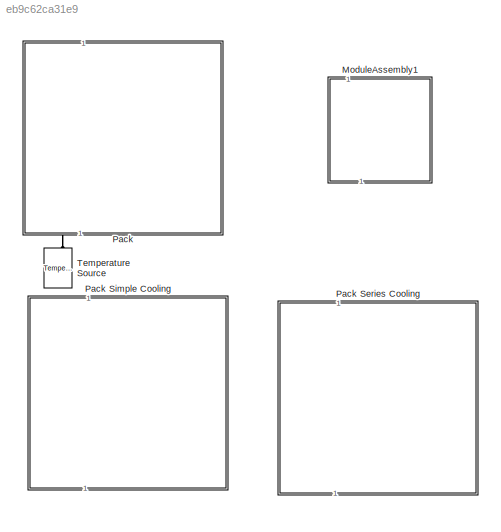
MODEL slx_eb9c62ca31e9
KIND library
CONFIG SolverName = VariableStepAuto
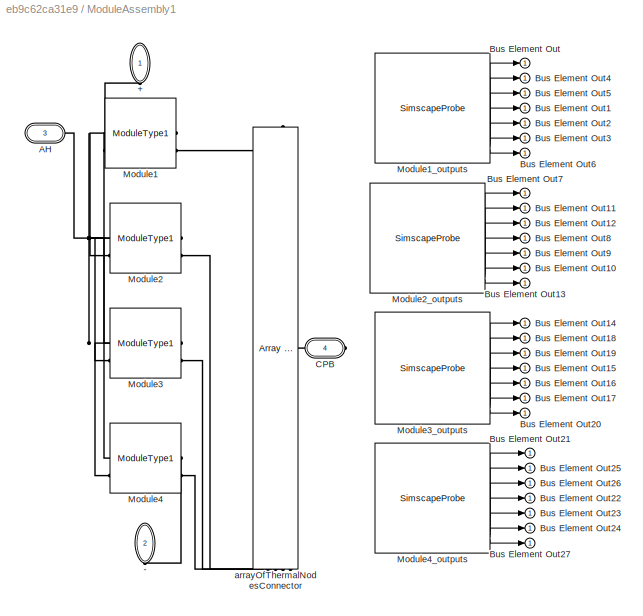
BLOCK [SubSystem] ModuleAssembly1
  LoadFcn = battery_builder_rtmsupport('loadfcn',gcbh);
  PortSchema = {"entries":[{"content":{"sides":[{"content":{"connectorIds":["LConn1","LConn2"]},"type":"ConnectorPlacement.EquallySpacedRectSide","uuid":"bc91a472-35c0-4041-89a6-b649b08794f0"},{"content":{"connectorIds":["RConn1","RConn2"],"side":"RIGHT"},"type":"ConnectorPlacement.EquallySpacedRectSide","uuid":"4a390b53-12a2-4d2f-9537-abc76db307f8"},{"content":{"connectorIds":[],"side":"TOP"},"type":"ConnectorP...<+413ch>
  PreCopyFcn = battery_builder_rtmsupport('precopyfcn',gcbh);
  PreDeleteFcn = battery_builder_rtmsupport('predeletefcn',gcbh);
BLOCK [PMIOPort] ModuleAssembly1/+
  NameLocation = left
  Side = Left
BLOCK [PMIOPort] ModuleAssembly1/-
  NameLocation = left
  Port = 2
  Side = Right
BLOCK [PMIOPort] ModuleAssembly1/AH
  Port = 3
  Side = Left
BLOCK [Outport] ModuleAssembly1/Bus Element Out
BLOCK [Outport] ModuleAssembly1/Bus Element Out1
BLOCK [Outport] ModuleAssembly1/Bus Element Out10
BLOCK [Outport] ModuleAssembly1/Bus Element Out11
BLOCK [Outport] ModuleAssembly1/Bus Element Out12
BLOCK [Outport] ModuleAssembly1/Bus Element Out13
BLOCK [Outport] ModuleAssembly1/Bus Element Out14
BLOCK [Outport] ModuleAssembly1/Bus Element Out15
BLOCK [Outport] ModuleAssembly1/Bus Element Out16
BLOCK [Outport] ModuleAssembly1/Bus Element Out17
BLOCK [Outport] ModuleAssembly1/Bus Element Out18
BLOCK [Outport] ModuleAssembly1/Bus Element Out19
BLOCK [Outport] ModuleAssembly1/Bus Element Out2
BLOCK [Outport] ModuleAssembly1/Bus Element Out20
BLOCK [Outport] ModuleAssembly1/Bus Element Out21
BLOCK [Outport] ModuleAssembly1/Bus Element Out22
BLOCK [Outport] ModuleAssembly1/Bus Element Out23
BLOCK [Outport] ModuleAssembly1/Bus Element Out24
BLOCK [Outport] ModuleAssembly1/Bus Element Out25
BLOCK [Outport] ModuleAssembly1/Bus Element Out26
BLOCK [Outport] ModuleAssembly1/Bus Element Out27
BLOCK [Outport] ModuleAssembly1/Bus Element Out3
BLOCK [Outport] ModuleAssembly1/Bus Element Out4
BLOCK [Outport] ModuleAssembly1/Bus Element Out5
BLOCK [Outport] ModuleAssembly1/Bus Element Out6
BLOCK [Outport] ModuleAssembly1/Bus Element Out7
BLOCK [Outport] ModuleAssembly1/Bus Element Out8
BLOCK [Outport] ModuleAssembly1/Bus Element Out9
BLOCK [PMIOPort] ModuleAssembly1/CPB
  Port = 4
  Side = Right
BLOCK [Reference] ModuleAssembly1/Module1  REF=pack_5p48s8p_4g4g4_Thr_lib/Modules/ModuleType1
  NameLocation = right
  SourceBlock = pack_5p48s8p_4g4g4_Thr_lib/Modules/ModuleType1
  SourceType = ModuleType1
BLOCK [SimscapeProbe] ModuleAssembly1/Module1_outputs
  BoundBlock = 1177
  Variables = {"batteryCurrent":{"Probing":"ON"},"batteryTemperature":{"Probing":"ON"},"batteryVoltage":{"Probing":"ON"},"iCell":{"Probing":"OFF"},"numCycles":{"Probing":"ON"},"numCyclesCell":{"Probing":"OFF"},"socCell":{"Probing":"ON"},"socParallelAssembly":{"Probing":"ON"},"temperatureCell":{"Probing":"OFF"},"vCell":{"Probing":"OFF"},"vParallelAssembly":{"Probing":"ON"}}  <repeated x4 — deduplicated; at blocks: Module1_outputs, Module2_outputs, Module3_outputs, Module4_outputs>
BLOCK [Reference] ModuleAssembly1/Module2  REF=pack_5p48s8p_4g4g4_Thr_lib/Modules/ModuleType1
  NameLocation = right
  SourceBlock = pack_5p48s8p_4g4g4_Thr_lib/Modules/ModuleType1
  SourceType = ModuleType1
BLOCK [SimscapeProbe] ModuleAssembly1/Module2_outputs
  BoundBlock = 1178
BLOCK [Reference] ModuleAssembly1/Module3  REF=pack_5p48s8p_4g4g4_Thr_lib/Modules/ModuleType1
  NameLocation = right
  SourceBlock = pack_5p48s8p_4g4g4_Thr_lib/Modules/ModuleType1
  SourceType = ModuleType1
BLOCK [SimscapeProbe] ModuleAssembly1/Module3_outputs
  BoundBlock = 1179
BLOCK [Reference] ModuleAssembly1/Module4  REF=pack_5p48s8p_4g4g4_Thr_lib/Modules/ModuleType1
  NameLocation = right
  SourceBlock = pack_5p48s8p_4g4g4_Thr_lib/Modules/ModuleType1
  SourceType = ModuleType1
BLOCK [SimscapeProbe] ModuleAssembly1/Module4_outputs
  BoundBlock = 1180
BLOCK [Reference] ModuleAssembly1/arrayOfThermalNodesConnector  REF=batt_lib/Thermal/Array of Thermal
Nodes Connector
  SourceBlock = batt_lib/Thermal/Array of Thermal\nNodes Connector
  SourceType = Array of Thermal\nNodes Connector
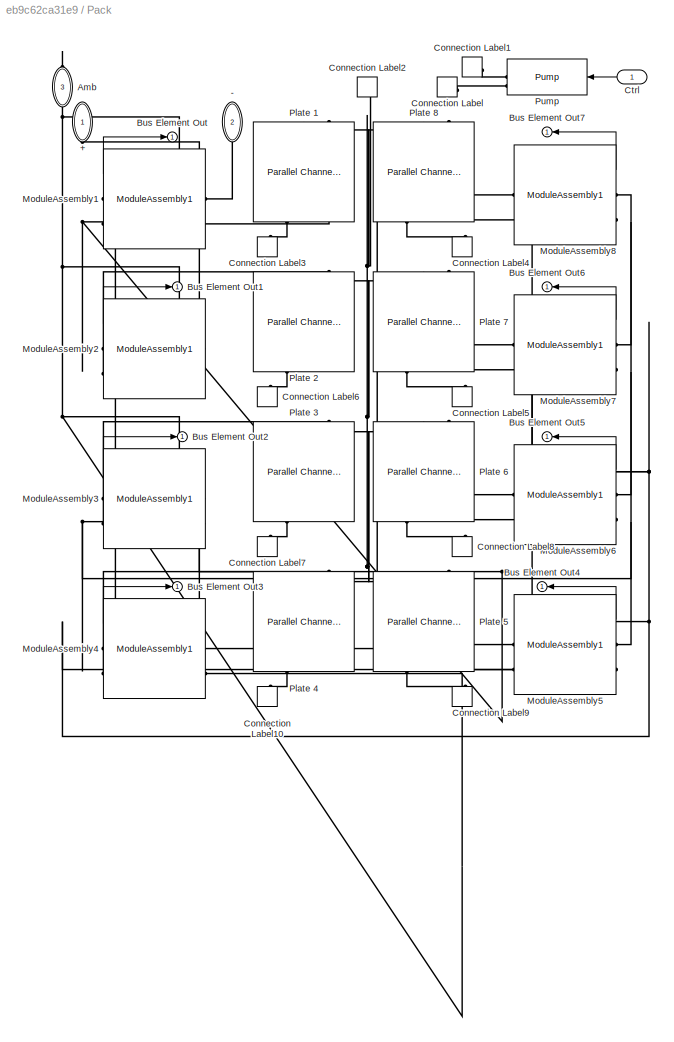
BLOCK [SubSystem] Pack
  LoadFcn = battery_builder_rtmsupport('loadfcn',gcbh);
  NameLocation = right
  PreCopyFcn = battery_builder_rtmsupport('precopyfcn',gcbh);
  PreDeleteFcn = battery_builder_rtmsupport('predeletefcn',gcbh);
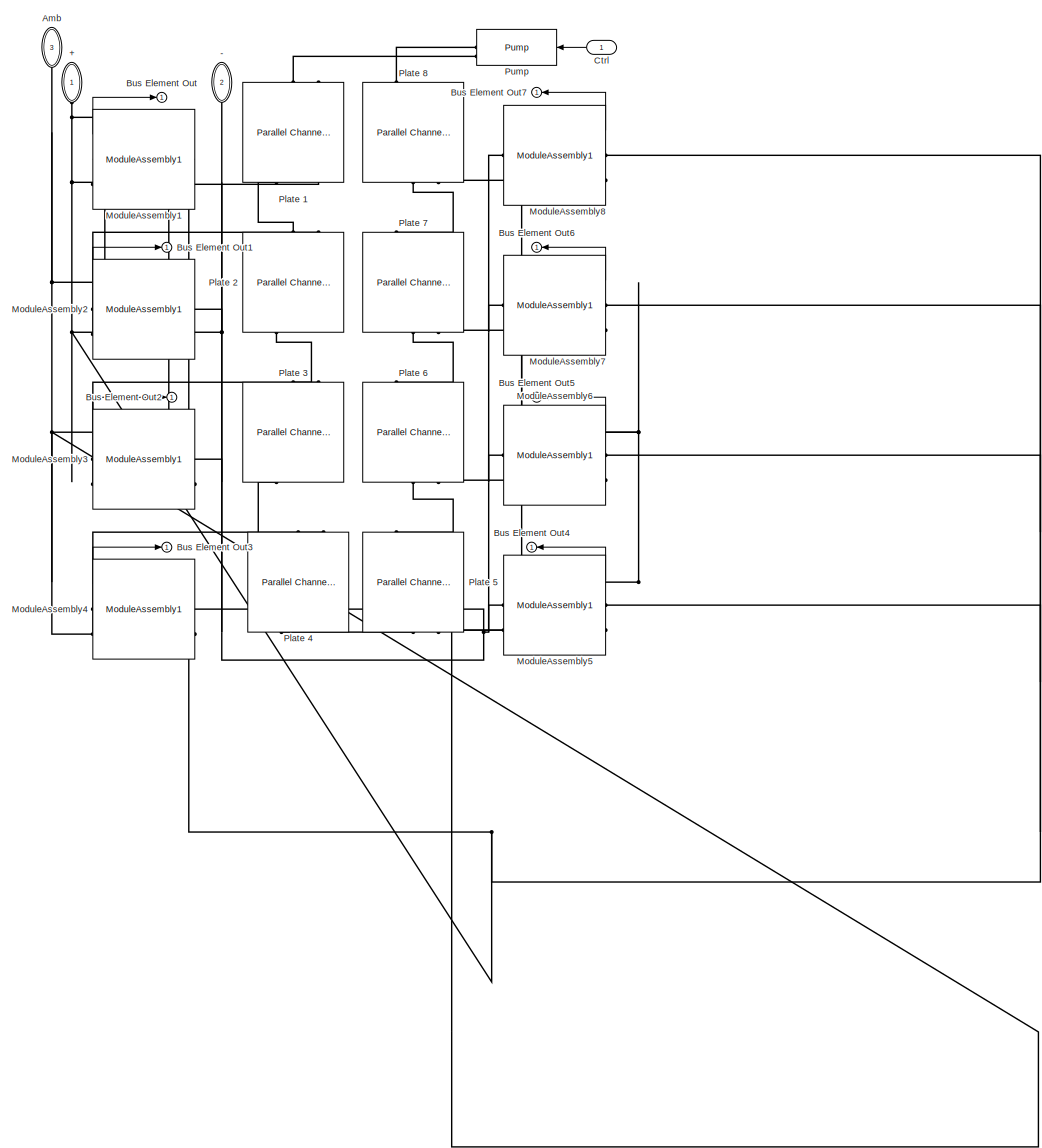
[diagram: Pack Series Cooling - part 1/1, most of the canvas]
BLOCK [SubSystem] Pack Series Cooling
  LoadFcn = battery_builder_rtmsupport('loadfcn',gcbh);
  NameLocation = right
  PreCopyFcn = battery_builder_rtmsupport('precopyfcn',gcbh);
  PreDeleteFcn = battery_builder_rtmsupport('predeletefcn',gcbh);
BLOCK [PMIOPort] Pack Series Cooling/+
  NameLocation = right
  Side = Left
BLOCK [PMIOPort] Pack Series Cooling/-
  NameLocation = right
  Port = 2
  Side = Right
BLOCK [PMIOPort] Pack Series Cooling/Amb
  NameLocation = right
  Port = 3
  Side = Right
BLOCK [Outport] Pack Series Cooling/Bus Element Out
BLOCK [Outport] Pack Series Cooling/Bus Element Out1
BLOCK [Outport] Pack Series Cooling/Bus Element Out2
BLOCK [Outport] Pack Series Cooling/Bus Element Out3
  NameLocation = left
BLOCK [Outport] Pack Series Cooling/Bus Element Out4
BLOCK [Outport] Pack Series Cooling/Bus Element Out5
BLOCK [Outport] Pack Series Cooling/Bus Element Out6
BLOCK [Outport] Pack Series Cooling/Bus Element Out7
BLOCK [Inport] Pack Series Cooling/Ctrl
BLOCK [Reference] Pack Series Cooling/ModuleAssembly1  REF=$bdroot/ModuleAssembly1
  SourceBlock = $bdroot/ModuleAssembly1
BLOCK [Reference] Pack Series Cooling/ModuleAssembly2  REF=$bdroot/ModuleAssembly1
  SourceBlock = $bdroot/ModuleAssembly1
BLOCK [Reference] Pack Series Cooling/ModuleAssembly3  REF=$bdroot/ModuleAssembly1
  SourceBlock = $bdroot/ModuleAssembly1
BLOCK [Reference] Pack Series Cooling/ModuleAssembly4  REF=$bdroot/ModuleAssembly1
  SourceBlock = $bdroot/ModuleAssembly1
BLOCK [Reference] Pack Series Cooling/ModuleAssembly5  REF=$bdroot/ModuleAssembly1
  SourceBlock = $bdroot/ModuleAssembly1
BLOCK [Reference] Pack Series Cooling/ModuleAssembly6  REF=$bdroot/ModuleAssembly1
  SourceBlock = $bdroot/ModuleAssembly1
BLOCK [Reference] Pack Series Cooling/ModuleAssembly7  REF=$bdroot/ModuleAssembly1
  SourceBlock = $bdroot/ModuleAssembly1
BLOCK [Reference] Pack Series Cooling/ModuleAssembly8  REF=$bdroot/ModuleAssembly1
  SourceBlock = $bdroot/ModuleAssembly1
BLOCK [Reference] Pack Series Cooling/Plate 1  REF=batt_lib/Thermal/Parallel Channels
  SourceBlock = batt_lib/Thermal/Parallel Channels
  SourceType = Parallel Channels
BLOCK [Reference] Pack Series Cooling/Plate 2  REF=batt_lib/Thermal/Parallel Channels
  SourceBlock = batt_lib/Thermal/Parallel Channels
  SourceType = Parallel Channels
BLOCK [Reference] Pack Series Cooling/Plate 3  REF=batt_lib/Thermal/Parallel Channels
  SourceBlock = batt_lib/Thermal/Parallel Channels
  SourceType = Parallel Channels
BLOCK [Reference] Pack Series Cooling/Plate 4  REF=batt_lib/Thermal/Parallel Channels
  SourceBlock = batt_lib/Thermal/Parallel Channels
  SourceType = Parallel Channels
BLOCK [Reference] Pack Series Cooling/Plate 5  REF=batt_lib/Thermal/Parallel Channels
  SourceBlock = batt_lib/Thermal/Parallel Channels
  SourceType = Parallel Channels
BLOCK [Reference] Pack Series Cooling/Plate 6  REF=batt_lib/Thermal/Parallel Channels
  SourceBlock = batt_lib/Thermal/Parallel Channels
  SourceType = Parallel Channels
BLOCK [Reference] Pack Series Cooling/Plate 7  REF=batt_lib/Thermal/Parallel Channels
  SourceBlock = batt_lib/Thermal/Parallel Channels
  SourceType = Parallel Channels
BLOCK [Reference] Pack Series Cooling/Plate 8  REF=batt_lib/Thermal/Parallel Channels
  SourceBlock = batt_lib/Thermal/Parallel Channels
  SourceType = Parallel Channels
BLOCK [Reference] Pack Series Cooling/Pump  REF=cooling_system_components/Pump  (lib defined in slx_1e8e36c102dd)
  SourceBlock = cooling_system_components/Pump
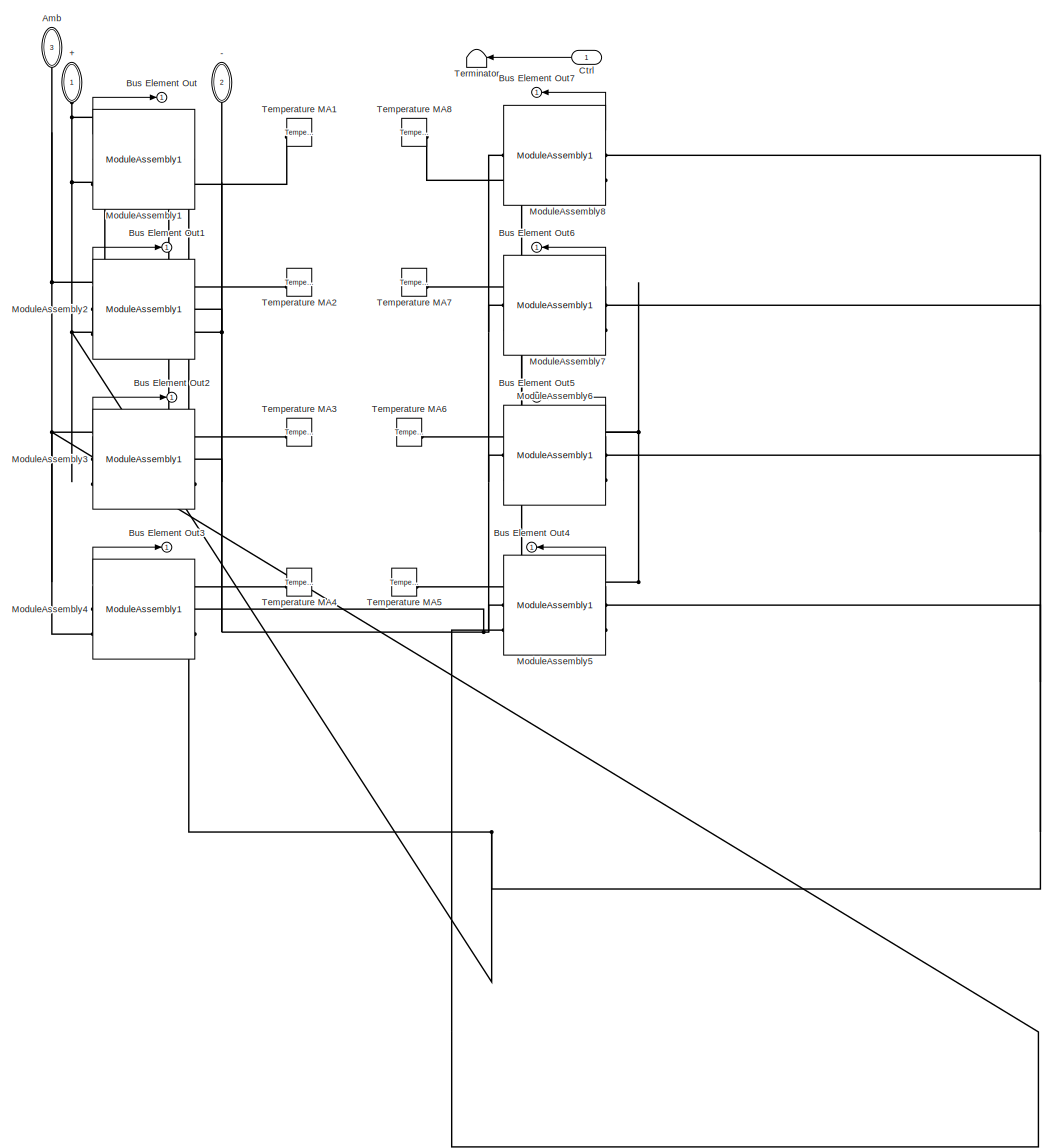
[diagram: Pack Simple Cooling - part 1/1, most of the canvas]
BLOCK [SubSystem] Pack Simple Cooling
  LoadFcn = battery_builder_rtmsupport('loadfcn',gcbh);
  NameLocation = right
  PreCopyFcn = battery_builder_rtmsupport('precopyfcn',gcbh);
  PreDeleteFcn = battery_builder_rtmsupport('predeletefcn',gcbh);
BLOCK [PMIOPort] Pack Simple Cooling/+
  NameLocation = right
  Side = Left
BLOCK [PMIOPort] Pack Simple Cooling/-
  NameLocation = right
  Port = 2
  Side = Right
BLOCK [PMIOPort] Pack Simple Cooling/Amb
  NameLocation = right
  Port = 3
  Side = Right
BLOCK [Outport] Pack Simple Cooling/Bus Element Out
BLOCK [Outport] Pack Simple Cooling/Bus Element Out1
BLOCK [Outport] Pack Simple Cooling/Bus Element Out2
BLOCK [Outport] Pack Simple Cooling/Bus Element Out3
  NameLocation = left
BLOCK [Outport] Pack Simple Cooling/Bus Element Out4
BLOCK [Outport] Pack Simple Cooling/Bus Element Out5
BLOCK [Outport] Pack Simple Cooling/Bus Element Out6
BLOCK [Outport] Pack Simple Cooling/Bus Element Out7
BLOCK [Inport] Pack Simple Cooling/Ctrl
  NameLocation = top
BLOCK [Reference] Pack Simple Cooling/ModuleAssembly1  REF=$bdroot/ModuleAssembly1
  SourceBlock = $bdroot/ModuleAssembly1
BLOCK [Reference] Pack Simple Cooling/ModuleAssembly2  REF=$bdroot/ModuleAssembly1
  SourceBlock = $bdroot/ModuleAssembly1
BLOCK [Reference] Pack Simple Cooling/ModuleAssembly3  REF=$bdroot/ModuleAssembly1
  SourceBlock = $bdroot/ModuleAssembly1
BLOCK [Reference] Pack Simple Cooling/ModuleAssembly4  REF=$bdroot/ModuleAssembly1
  SourceBlock = $bdroot/ModuleAssembly1
BLOCK [Reference] Pack Simple Cooling/ModuleAssembly5  REF=$bdroot/ModuleAssembly1
  SourceBlock = $bdroot/ModuleAssembly1
BLOCK [Reference] Pack Simple Cooling/ModuleAssembly6  REF=$bdroot/ModuleAssembly1
  SourceBlock = $bdroot/ModuleAssembly1
BLOCK [Reference] Pack Simple Cooling/ModuleAssembly7  REF=$bdroot/ModuleAssembly1
  SourceBlock = $bdroot/ModuleAssembly1
BLOCK [Reference] Pack Simple Cooling/ModuleAssembly8  REF=$bdroot/ModuleAssembly1
  SourceBlock = $bdroot/ModuleAssembly1
BLOCK [Reference] Pack Simple Cooling/Temperature MA1  REF=cooling_system_components/Temperature Array4  (lib defined in slx_1e8e36c102dd)
Single Module
  SourceBlock = cooling_system_components/Temperature Array4\nSingle Module
BLOCK [Reference] Pack Simple Cooling/Temperature MA2  REF=cooling_system_components/Temperature Array4  (lib defined in slx_1e8e36c102dd)
Single Module
  SourceBlock = cooling_system_components/Temperature Array4\nSingle Module
BLOCK [Reference] Pack Simple Cooling/Temperature MA3  REF=cooling_system_components/Temperature Array4  (lib defined in slx_1e8e36c102dd)
Single Module
  SourceBlock = cooling_system_components/Temperature Array4\nSingle Module
BLOCK [Reference] Pack Simple Cooling/Temperature MA4  REF=cooling_system_components/Temperature Array4  (lib defined in slx_1e8e36c102dd)
Single Module
  SourceBlock = cooling_system_components/Temperature Array4\nSingle Module
BLOCK [Reference] Pack Simple Cooling/Temperature MA5  REF=cooling_system_components/Temperature Array4  (lib defined in slx_1e8e36c102dd)
Single Module
  SourceBlock = cooling_system_components/Temperature Array4\nSingle Module
BLOCK [Reference] Pack Simple Cooling/Temperature MA6  REF=cooling_system_components/Temperature Array4  (lib defined in slx_1e8e36c102dd)
Single Module
  SourceBlock = cooling_system_components/Temperature Array4\nSingle Module
BLOCK [Reference] Pack Simple Cooling/Temperature MA7  REF=cooling_system_components/Temperature Array4  (lib defined in slx_1e8e36c102dd)
Single Module
  SourceBlock = cooling_system_components/Temperature Array4\nSingle Module
BLOCK [Reference] Pack Simple Cooling/Temperature MA8  REF=cooling_system_components/Temperature Array4  (lib defined in slx_1e8e36c102dd)
Single Module
  SourceBlock = cooling_system_components/Temperature Array4\nSingle Module
BLOCK [Terminator] Pack Simple Cooling/Terminator
  NameLocation = top
BLOCK [PMIOPort] Pack/+
  NameLocation = right
  Side = Left
BLOCK [PMIOPort] Pack/-
  NameLocation = right
  Port = 2
  Side = Right
BLOCK [PMIOPort] Pack/Amb
  NameLocation = right
  Port = 3
  Side = Right
BLOCK [Outport] Pack/Bus Element Out
BLOCK [Outport] Pack/Bus Element Out1
BLOCK [Outport] Pack/Bus Element Out2
BLOCK [Outport] Pack/Bus Element Out3
  NameLocation = left
BLOCK [Outport] Pack/Bus Element Out4
BLOCK [Outport] Pack/Bus Element Out5
BLOCK [Outport] Pack/Bus Element Out6
BLOCK [Outport] Pack/Bus Element Out7
BLOCK [ConnectionLabel] Pack/Connection Label
  Label = Plate
  NameLocation = right
BLOCK [ConnectionLabel] Pack/Connection Label1
  Label = Return
  NameLocation = right
BLOCK [ConnectionLabel] Pack/Connection Label10
  Label = Return
  NameLocation = right
BLOCK [ConnectionLabel] Pack/Connection Label2
  Label = Plate
  NameLocation = right
BLOCK [ConnectionLabel] Pack/Connection Label3
  Label = Return
  NameLocation = right
BLOCK [ConnectionLabel] Pack/Connection Label4
  Label = Return
  NameLocation = right
BLOCK [ConnectionLabel] Pack/Connection Label5
  Label = Return
  NameLocation = right
BLOCK [ConnectionLabel] Pack/Connection Label6
  Label = Return
  NameLocation = right
BLOCK [ConnectionLabel] Pack/Connection Label7
  Label = Return
  NameLocation = right
BLOCK [ConnectionLabel] Pack/Connection Label8
  Label = Return
  NameLocation = right
BLOCK [ConnectionLabel] Pack/Connection Label9
  Label = Return
  NameLocation = right
BLOCK [Inport] Pack/Ctrl
BLOCK [Reference] Pack/ModuleAssembly1  REF=$bdroot/ModuleAssembly1
  SourceBlock = $bdroot/ModuleAssembly1
BLOCK [Reference] Pack/ModuleAssembly2  REF=$bdroot/ModuleAssembly1
  SourceBlock = $bdroot/ModuleAssembly1
BLOCK [Reference] Pack/ModuleAssembly3  REF=$bdroot/ModuleAssembly1
  SourceBlock = $bdroot/ModuleAssembly1
BLOCK [Reference] Pack/ModuleAssembly4  REF=$bdroot/ModuleAssembly1
  SourceBlock = $bdroot/ModuleAssembly1
BLOCK [Reference] Pack/ModuleAssembly5  REF=$bdroot/ModuleAssembly1
  SourceBlock = $bdroot/ModuleAssembly1
BLOCK [Reference] Pack/ModuleAssembly6  REF=$bdroot/ModuleAssembly1
  SourceBlock = $bdroot/ModuleAssembly1
BLOCK [Reference] Pack/ModuleAssembly7  REF=$bdroot/ModuleAssembly1
  SourceBlock = $bdroot/ModuleAssembly1
BLOCK [Reference] Pack/ModuleAssembly8  REF=$bdroot/ModuleAssembly1
  SourceBlock = $bdroot/ModuleAssembly1
BLOCK [Reference] Pack/Plate 1  REF=batt_lib/Thermal/Parallel Channels
  SourceBlock = batt_lib/Thermal/Parallel Channels
  SourceType = Parallel Channels
BLOCK [Reference] Pack/Plate 2  REF=batt_lib/Thermal/Parallel Channels
  SourceBlock = batt_lib/Thermal/Parallel Channels
  SourceType = Parallel Channels
BLOCK [Reference] Pack/Plate 3  REF=batt_lib/Thermal/Parallel Channels
  SourceBlock = batt_lib/Thermal/Parallel Channels
  SourceType = Parallel Channels
BLOCK [Reference] Pack/Plate 4  REF=batt_lib/Thermal/Parallel Channels
  SourceBlock = batt_lib/Thermal/Parallel Channels
  SourceType = Parallel Channels
BLOCK [Reference] Pack/Plate 5  REF=batt_lib/Thermal/Parallel Channels
  SourceBlock = batt_lib/Thermal/Parallel Channels
  SourceType = Parallel Channels
BLOCK [Reference] Pack/Plate 6  REF=batt_lib/Thermal/Parallel Channels
  SourceBlock = batt_lib/Thermal/Parallel Channels
  SourceType = Parallel Channels
BLOCK [Reference] Pack/Plate 7  REF=batt_lib/Thermal/Parallel Channels
  SourceBlock = batt_lib/Thermal/Parallel Channels
  SourceType = Parallel Channels
BLOCK [Reference] Pack/Plate 8  REF=batt_lib/Thermal/Parallel Channels
  SourceBlock = batt_lib/Thermal/Parallel Channels
  SourceType = Parallel Channels
BLOCK [Reference] Pack/Pump  REF=cooling_system_components/Pump  (lib defined in slx_1e8e36c102dd)
  SourceBlock = cooling_system_components/Pump
BLOCK [Reference] Temperature Source  REF=fl_lib/Thermal/Thermal Sources/Temperature Source
  NameLocation = right
  SourceBlock = fl_lib/Thermal/Thermal Sources/Temperature Source
  SourceType = Temperature Source
LINE ModuleAssembly1/Module1_outputs:1 -> ModuleAssembly1/Bus Element Out:1
LINE ModuleAssembly1/Module1_outputs:2 -> ModuleAssembly1/Bus Element Out4:1
LINE ModuleAssembly1/Module1_outputs:3 -> ModuleAssembly1/Bus Element Out5:1
LINE ModuleAssembly1/Module1_outputs:4 -> ModuleAssembly1/Bus Element Out1:1
LINE ModuleAssembly1/Module1_outputs:5 -> ModuleAssembly1/Bus Element Out2:1
LINE ModuleAssembly1/Module1_outputs:6 -> ModuleAssembly1/Bus Element Out3:1
LINE ModuleAssembly1/Module1_outputs:7 -> ModuleAssembly1/Bus Element Out6:1
LINE ModuleAssembly1/Module2_outputs:1 -> ModuleAssembly1/Bus Element Out7:1
LINE ModuleAssembly1/Module2_outputs:2 -> ModuleAssembly1/Bus Element Out11:1
LINE ModuleAssembly1/Module2_outputs:3 -> ModuleAssembly1/Bus Element Out12:1
LINE ModuleAssembly1/Module2_outputs:4 -> ModuleAssembly1/Bus Element Out8:1
LINE ModuleAssembly1/Module2_outputs:5 -> ModuleAssembly1/Bus Element Out9:1
LINE ModuleAssembly1/Module2_outputs:6 -> ModuleAssembly1/Bus Element Out10:1
LINE ModuleAssembly1/Module2_outputs:7 -> ModuleAssembly1/Bus Element Out13:1
LINE ModuleAssembly1/Module3_outputs:1 -> ModuleAssembly1/Bus Element Out14:1
LINE ModuleAssembly1/Module3_outputs:2 -> ModuleAssembly1/Bus Element Out18:1
LINE ModuleAssembly1/Module3_outputs:3 -> ModuleAssembly1/Bus Element Out19:1
LINE ModuleAssembly1/Module3_outputs:4 -> ModuleAssembly1/Bus Element Out15:1
LINE ModuleAssembly1/Module3_outputs:5 -> ModuleAssembly1/Bus Element Out16:1
LINE ModuleAssembly1/Module3_outputs:6 -> ModuleAssembly1/Bus Element Out17:1
LINE ModuleAssembly1/Module3_outputs:7 -> ModuleAssembly1/Bus Element Out20:1
LINE ModuleAssembly1/Module4_outputs:1 -> ModuleAssembly1/Bus Element Out21:1
LINE ModuleAssembly1/Module4_outputs:2 -> ModuleAssembly1/Bus Element Out25:1
LINE ModuleAssembly1/Module4_outputs:3 -> ModuleAssembly1/Bus Element Out26:1
LINE ModuleAssembly1/Module4_outputs:4 -> ModuleAssembly1/Bus Element Out22:1
LINE ModuleAssembly1/Module4_outputs:5 -> ModuleAssembly1/Bus Element Out23:1
LINE ModuleAssembly1/Module4_outputs:6 -> ModuleAssembly1/Bus Element Out24:1
LINE ModuleAssembly1/Module4_outputs:7 -> ModuleAssembly1/Bus Element Out27:1
LINE Pack Series Cooling/Ctrl:1 -> Pack Series Cooling/Pump:1
LINE Pack Series Cooling/ModuleAssembly1:1 -> Pack Series Cooling/Bus Element Out:1
LINE Pack Series Cooling/ModuleAssembly2:1 -> Pack Series Cooling/Bus Element Out1:1
LINE Pack Series Cooling/ModuleAssembly3:1 -> Pack Series Cooling/Bus Element Out2:1
LINE Pack Series Cooling/ModuleAssembly4:1 -> Pack Series Cooling/Bus Element Out3:1
LINE Pack Series Cooling/ModuleAssembly5:1 -> Pack Series Cooling/Bus Element Out4:1
LINE Pack Series Cooling/ModuleAssembly6:1 -> Pack Series Cooling/Bus Element Out5:1
LINE Pack Series Cooling/ModuleAssembly7:1 -> Pack Series Cooling/Bus Element Out6:1
LINE Pack Series Cooling/ModuleAssembly8:1 -> Pack Series Cooling/Bus Element Out7:1
LINE Pack Simple Cooling/Ctrl:1 -> Pack Simple Cooling/Terminator:1
LINE Pack Simple Cooling/ModuleAssembly1:1 -> Pack Simple Cooling/Bus Element Out:1
LINE Pack Simple Cooling/ModuleAssembly2:1 -> Pack Simple Cooling/Bus Element Out1:1
LINE Pack Simple Cooling/ModuleAssembly3:1 -> Pack Simple Cooling/Bus Element Out2:1
LINE Pack Simple Cooling/ModuleAssembly4:1 -> Pack Simple Cooling/Bus Element Out3:1
LINE Pack Simple Cooling/ModuleAssembly5:1 -> Pack Simple Cooling/Bus Element Out4:1
LINE Pack Simple Cooling/ModuleAssembly6:1 -> Pack Simple Cooling/Bus Element Out5:1
LINE Pack Simple Cooling/ModuleAssembly7:1 -> Pack Simple Cooling/Bus Element Out6:1
LINE Pack Simple Cooling/ModuleAssembly8:1 -> Pack Simple Cooling/Bus Element Out7:1
LINE Pack/Ctrl:1 -> Pack/Pump:1
LINE Pack/ModuleAssembly1:1 -> Pack/Bus Element Out:1
LINE Pack/ModuleAssembly2:1 -> Pack/Bus Element Out1:1
LINE Pack/ModuleAssembly3:1 -> Pack/Bus Element Out2:1
LINE Pack/ModuleAssembly4:1 -> Pack/Bus Element Out3:1
LINE Pack/ModuleAssembly5:1 -> Pack/Bus Element Out4:1
LINE Pack/ModuleAssembly6:1 -> Pack/Bus Element Out5:1
LINE Pack/ModuleAssembly7:1 -> Pack/Bus Element Out6:1
LINE Pack/ModuleAssembly8:1 -> Pack/Bus Element Out7:1
PLINE ModuleAssembly1/+:RConn1 -- ModuleAssembly1/Module1:LConn2
PLINE ModuleAssembly1/-:RConn1 -- ModuleAssembly1/Module4:RConn1
PNET net1: ModuleAssembly1/AH:RConn1 -- ModuleAssembly1/Module1:LConn1 -- ModuleAssembly1/Module2:LConn1 -- ModuleAssembly1/Module3:LConn1 -- ModuleAssembly1/Module4:LConn1
PLINE ModuleAssembly1/CPB:RConn1 -- ModuleAssembly1/arrayOfThermalNodesConnector:RConn1
PLINE ModuleAssembly1/Module1:RConn1 -- ModuleAssembly1/Module2:LConn2
PLINE ModuleAssembly1/Module1:RConn2 -- ModuleAssembly1/arrayOfThermalNodesConnector:LConn4
PLINE ModuleAssembly1/Module2:RConn1 -- ModuleAssembly1/Module3:LConn2
PLINE ModuleAssembly1/Module2:RConn2 -- ModuleAssembly1/arrayOfThermalNodesConnector:LConn3
PLINE ModuleAssembly1/Module3:RConn1 -- ModuleAssembly1/Module4:LConn2
PLINE ModuleAssembly1/Module3:RConn2 -- ModuleAssembly1/arrayOfThermalNodesConnector:LConn2
PLINE ModuleAssembly1/Module4:RConn2 -- ModuleAssembly1/arrayOfThermalNodesConnector:LConn1
PNET net2: Pack Series Cooling/+:RConn1 -- Pack Series Cooling/ModuleAssembly1:LConn1 -- Pack Series Cooling/ModuleAssembly2:LConn1 -- Pack Series Cooling/ModuleAssembly3:LConn1 -- Pack Series Cooling/ModuleAssembly4:LConn1 -- Pack Series Cooling/ModuleAssembly5:LConn1 -- Pack Series Cooling/ModuleAssembly6:LConn1 -- Pack Series Cooling/ModuleAssembly7:LConn1 -- Pack Series Cooling/ModuleAssembly8:LConn1
PNET net3: Pack Series Cooling/-:RConn1 -- Pack Series Cooling/ModuleAssembly1:RConn1 -- Pack Series Cooling/ModuleAssembly2:RConn1 -- Pack Series Cooling/ModuleAssembly3:RConn1 -- Pack Series Cooling/ModuleAssembly4:RConn1 -- Pack Series Cooling/ModuleAssembly5:RConn1 -- Pack Series Cooling/ModuleAssembly6:RConn1 -- Pack Series Cooling/ModuleAssembly7:RConn1 -- Pack Series Cooling/ModuleAssembly8:RConn1
PNET net4: Pack Series Cooling/Amb:RConn1 -- Pack Series Cooling/ModuleAssembly1:LConn2 -- Pack Series Cooling/ModuleAssembly2:LConn2 -- Pack Series Cooling/ModuleAssembly3:LConn2 -- Pack Series Cooling/ModuleAssembly4:LConn2 -- Pack Series Cooling/ModuleAssembly5:LConn2 -- Pack Series Cooling/ModuleAssembly6:LConn2 -- Pack Series Cooling/ModuleAssembly7:LConn2 -- Pack Series Cooling/ModuleAssembly8:LConn2
PLINE Pack Series Cooling/ModuleAssembly1:RConn2 -- Pack Series Cooling/Plate 1:LConn2
PLINE Pack Series Cooling/ModuleAssembly2:RConn2 -- Pack Series Cooling/Plate 2:LConn2
PLINE Pack Series Cooling/ModuleAssembly3:RConn2 -- Pack Series Cooling/Plate 3:LConn2
PLINE Pack Series Cooling/ModuleAssembly4:RConn2 -- Pack Series Cooling/Plate 4:LConn2
PLINE Pack Series Cooling/ModuleAssembly5:RConn2 -- Pack Series Cooling/Plate 5:LConn2
PLINE Pack Series Cooling/ModuleAssembly6:RConn2 -- Pack Series Cooling/Plate 6:LConn2
PLINE Pack Series Cooling/ModuleAssembly7:RConn2 -- Pack Series Cooling/Plate 7:LConn2
PLINE Pack Series Cooling/ModuleAssembly8:RConn2 -- Pack Series Cooling/Plate 8:LConn2
PLINE Pack Series Cooling/Plate 1:LConn1 -- Pack Series Cooling/Pump:RConn2
PLINE Pack Series Cooling/Plate 1:RConn1 -- Pack Series Cooling/Plate 2:LConn1
PLINE Pack Series Cooling/Plate 2:RConn1 -- Pack Series Cooling/Plate 3:LConn1
PLINE Pack Series Cooling/Plate 3:RConn1 -- Pack Series Cooling/Plate 4:LConn1
PLINE Pack Series Cooling/Plate 4:RConn1 -- Pack Series Cooling/Plate 5:LConn1
PLINE Pack Series Cooling/Plate 5:RConn1 -- Pack Series Cooling/Plate 6:LConn1
PLINE Pack Series Cooling/Plate 6:RConn1 -- Pack Series Cooling/Plate 7:LConn1
PLINE Pack Series Cooling/Plate 7:RConn1 -- Pack Series Cooling/Plate 8:LConn1
PLINE Pack Series Cooling/Plate 8:RConn1 -- Pack Series Cooling/Pump:RConn1
PNET net5: Pack Simple Cooling/+:RConn1 -- Pack Simple Cooling/ModuleAssembly1:LConn1 -- Pack Simple Cooling/ModuleAssembly2:LConn1 -- Pack Simple Cooling/ModuleAssembly3:LConn1 -- Pack Simple Cooling/ModuleAssembly4:LConn1 -- Pack Simple Cooling/ModuleAssembly5:LConn1 -- Pack Simple Cooling/ModuleAssembly6:LConn1 -- Pack Simple Cooling/ModuleAssembly7:LConn1 -- Pack Simple Cooling/ModuleAssembly8:LConn1
PNET net6: Pack Simple Cooling/-:RConn1 -- Pack Simple Cooling/ModuleAssembly1:RConn1 -- Pack Simple Cooling/ModuleAssembly2:RConn1 -- Pack Simple Cooling/ModuleAssembly3:RConn1 -- Pack Simple Cooling/ModuleAssembly4:RConn1 -- Pack Simple Cooling/ModuleAssembly5:RConn1 -- Pack Simple Cooling/ModuleAssembly6:RConn1 -- Pack Simple Cooling/ModuleAssembly7:RConn1 -- Pack Simple Cooling/ModuleAssembly8:RConn1
PNET net7: Pack Simple Cooling/Amb:RConn1 -- Pack Simple Cooling/ModuleAssembly1:LConn2 -- Pack Simple Cooling/ModuleAssembly2:LConn2 -- Pack Simple Cooling/ModuleAssembly3:LConn2 -- Pack Simple Cooling/ModuleAssembly4:LConn2 -- Pack Simple Cooling/ModuleAssembly5:LConn2 -- Pack Simple Cooling/ModuleAssembly6:LConn2 -- Pack Simple Cooling/ModuleAssembly7:LConn2 -- Pack Simple Cooling/ModuleAssembly8:LConn2
PLINE Pack Simple Cooling/ModuleAssembly1:RConn2 -- Pack Simple Cooling/Temperature MA1:LConn1
PLINE Pack Simple Cooling/ModuleAssembly2:RConn2 -- Pack Simple Cooling/Temperature MA2:LConn1
PLINE Pack Simple Cooling/ModuleAssembly3:RConn2 -- Pack Simple Cooling/Temperature MA3:LConn1
PLINE Pack Simple Cooling/ModuleAssembly4:RConn2 -- Pack Simple Cooling/Temperature MA4:LConn1
PLINE Pack Simple Cooling/ModuleAssembly5:RConn2 -- Pack Simple Cooling/Temperature MA5:LConn1
PLINE Pack Simple Cooling/ModuleAssembly6:RConn2 -- Pack Simple Cooling/Temperature MA6:LConn1
PLINE Pack Simple Cooling/ModuleAssembly7:RConn2 -- Pack Simple Cooling/Temperature MA7:LConn1
PLINE Pack Simple Cooling/ModuleAssembly8:RConn2 -- Pack Simple Cooling/Temperature MA8:LConn1
PNET net8: Pack/+:RConn1 -- Pack/ModuleAssembly1:LConn1 -- Pack/ModuleAssembly2:LConn1 -- Pack/ModuleAssembly3:LConn1 -- Pack/ModuleAssembly4:LConn1 -- Pack/ModuleAssembly5:LConn1 -- Pack/ModuleAssembly6:LConn1 -- Pack/ModuleAssembly7:LConn1 -- Pack/ModuleAssembly8:LConn1
PNET net9: Pack/-:RConn1 -- Pack/ModuleAssembly1:RConn1 -- Pack/ModuleAssembly2:RConn1 -- Pack/ModuleAssembly3:RConn1 -- Pack/ModuleAssembly4:RConn1 -- Pack/ModuleAssembly5:RConn1 -- Pack/ModuleAssembly6:RConn1 -- Pack/ModuleAssembly7:RConn1 -- Pack/ModuleAssembly8:RConn1
PNET net10: Pack/Amb:RConn1 -- Pack/ModuleAssembly1:LConn2 -- Pack/ModuleAssembly2:LConn2 -- Pack/ModuleAssembly3:LConn2 -- Pack/ModuleAssembly4:LConn2 -- Pack/ModuleAssembly5:LConn2 -- Pack/ModuleAssembly6:LConn2 -- Pack/ModuleAssembly7:LConn2 -- Pack/ModuleAssembly8:LConn2
PLINE Pack/Connection Label10:LConn1 -- Pack/Plate 4:RConn1
PLINE Pack/Connection Label1:LConn1 -- Pack/Pump:RConn1
PNET net11: Pack/Connection Label2:LConn1 -- Pack/Plate 1:LConn1 -- Pack/Plate 2:LConn1 -- Pack/Plate 3:LConn1 -- Pack/Plate 4:LConn1 -- Pack/Plate 5:LConn1 -- Pack/Plate 6:LConn1 -- Pack/Plate 7:LConn1 -- Pack/Plate 8:LConn1
PLINE Pack/Connection Label3:LConn1 -- Pack/Plate 1:RConn1
PLINE Pack/Connection Label4:LConn1 -- Pack/Plate 8:RConn1
PLINE Pack/Connection Label5:LConn1 -- Pack/Plate 7:RConn1
PLINE Pack/Connection Label6:LConn1 -- Pack/Plate 2:RConn1
PLINE Pack/Connection Label7:LConn1 -- Pack/Plate 3:RConn1
PLINE Pack/Connection Label8:LConn1 -- Pack/Plate 6:RConn1
PLINE Pack/Connection Label9:LConn1 -- Pack/Plate 5:RConn1
PLINE Pack/Connection Label:LConn1 -- Pack/Pump:RConn2
PLINE Pack/ModuleAssembly1:RConn2 -- Pack/Plate 1:LConn2
PLINE Pack/ModuleAssembly2:RConn2 -- Pack/Plate 2:LConn2
PLINE Pack/ModuleAssembly3:RConn2 -- Pack/Plate 3:LConn2
PLINE Pack/ModuleAssembly4:RConn2 -- Pack/Plate 4:LConn2
PLINE Pack/ModuleAssembly5:RConn2 -- Pack/Plate 5:LConn2
PLINE Pack/ModuleAssembly6:RConn2 -- Pack/Plate 6:LConn2
PLINE Pack/ModuleAssembly7:RConn2 -- Pack/Plate 7:LConn2
PLINE Pack/ModuleAssembly8:RConn2 -- Pack/Plate 8:LConn2
PLINE Pack:RConn2 -- Temperature Source:LConn1
note: PNET lines group multi-terminal physical nets as a canonical sorted terminal list (undirected conserving connections); 2-terminal nets keep the pairwise PLINE form
